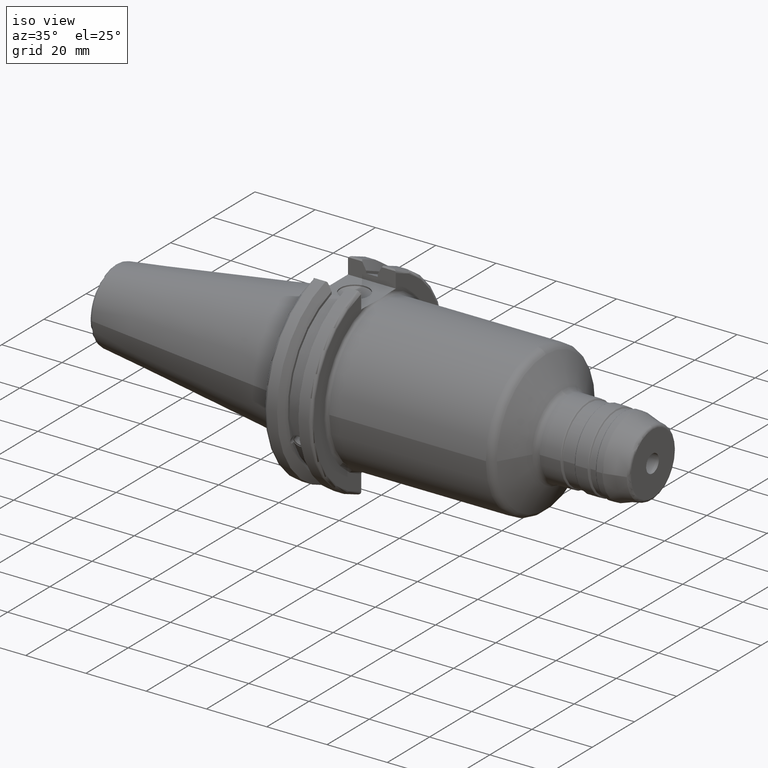
[diagram: clean part render]
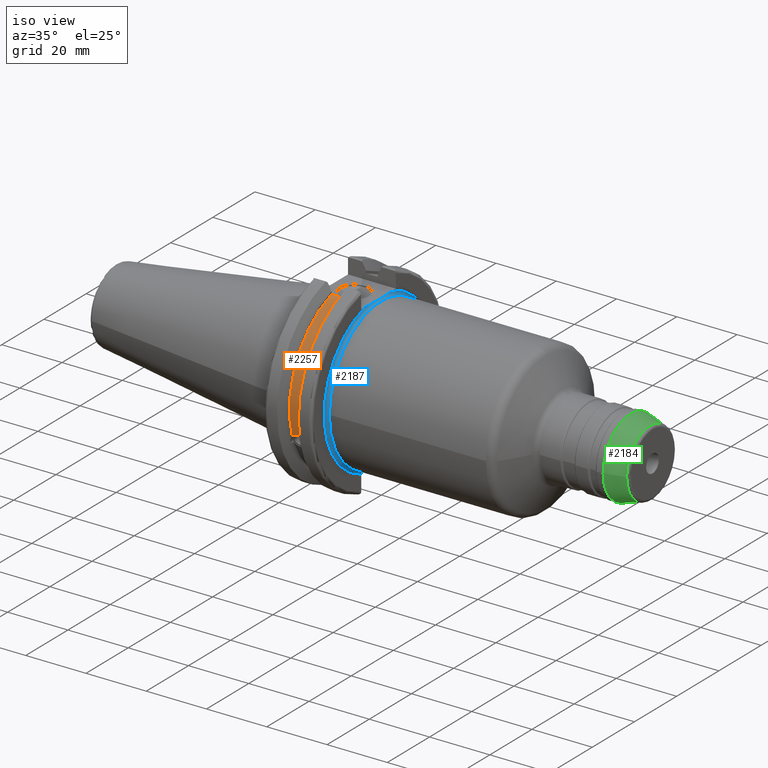
[diagram: same view with three faces highlighted in distinct colors, each labeled with its STEP entity id]
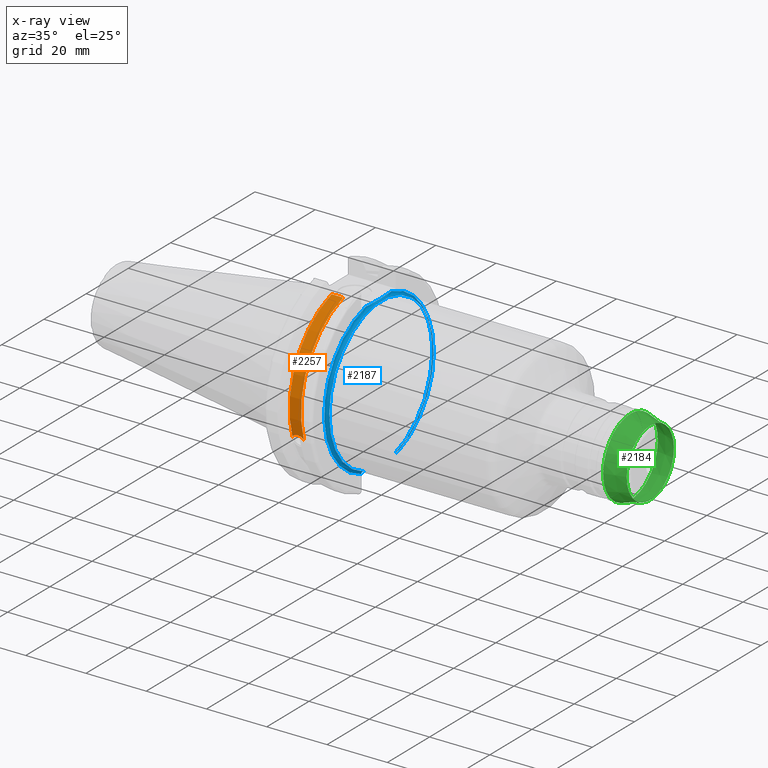
[diagram: x-ray of the same camera — body ghosted, the three highlighted faces saturated]
A machine part, iso view with three faces highlighted in distinct colors.
The next image is the same camera in x-ray (body ghosted, the three faces saturated) — at least one of them is partly hidden behind the body in this view.
Their STEP definitions:

[orange] entity #2257 — the highlighted cylindrical surface (partial cylindrical patch) has radius 28.15 mm, axis along (1, 0, 0).
#155=B_SPLINE_CURVE_WITH_KNOTS('',3,(#3836,#3837,#3838,#3839,#3840,#3841,
#3842,#3843,#3844,#3845,#3846,#3847,#3848,#3849),.UNSPECIFIED.,.F.,.F.,
(4,2,2,2,2,2,4),(0.401639126382403,0.474814416953736,0.553950208498303,
0.63308600004287,0.712221791587437,0.791357583132004,0.864532873703336),
 .UNSPECIFIED.);
#280=FACE_OUTER_BOUND('',#405,.T.);
#405=EDGE_LOOP('',(#2055,#2056,#2057,#2058));
#493=LINE('',#4260,#589);
#589=VECTOR('',#3192,10.);
#789=CIRCLE('',#2586,28.15);
#790=CIRCLE('',#2587,28.15);
#929=VERTEX_POINT('',#3833);
#930=VERTEX_POINT('',#3835);
#1019=VERTEX_POINT('',#4257);
#1020=VERTEX_POINT('',#4259);
#1226=EDGE_CURVE('',#930,#929,#155,.T.);
#1346=EDGE_CURVE('',#1020,#1019,#493,.T.);
#1395=EDGE_CURVE('',#1020,#929,#789,.T.);
#1396=EDGE_CURVE('',#1019,#930,#790,.T.);
#2055=ORIENTED_EDGE('',*,*,#1226,.T.);
#2056=ORIENTED_EDGE('',*,*,#1395,.F.);
#2057=ORIENTED_EDGE('',*,*,#1346,.T.);
#2058=ORIENTED_EDGE('',*,*,#1396,.T.);
#2154=CYLINDRICAL_SURFACE('',#2585,28.15);
#2257=ADVANCED_FACE('',(#280),#2154,.T.);
#2585=AXIS2_PLACEMENT_3D('',#4404,#3293,#3294);
#2586=AXIS2_PLACEMENT_3D('',#4405,#3295,#3296);
#2587=AXIS2_PLACEMENT_3D('',#4406,#3297,#3298);
#3192=DIRECTION('',(-1.,0.,0.));
#3293=DIRECTION('center_axis',(1.,0.,0.));
#3294=DIRECTION('ref_axis',(0.,-0.887654187951484,0.46051063246378));
#3295=DIRECTION('center_axis',(1.,0.,0.));
#3296=DIRECTION('ref_axis',(0.,0.,-1.));
#3297=DIRECTION('center_axis',(1.,0.,0.));
#3298=DIRECTION('ref_axis',(0.,0.,-1.));
#3833=CARTESIAN_POINT('',(13.0491,-26.734714844398,-8.81348524641211));
#3835=CARTESIAN_POINT('',(9.2191,-26.734714844398,-8.81348524641212));
#3836=CARTESIAN_POINT('Ctrl Pts',(9.2191,-26.734714844398,-8.81348524641212));
#3837=CARTESIAN_POINT('Ctrl Pts',(9.32533057097183,-26.8086519721597,-8.58920529678291));
#3838=CARTESIAN_POINT('Ctrl Pts',(9.47682013770509,-26.8729987454904,-8.38416529997369));
#3839=CARTESIAN_POINT('Ctrl Pts',(9.83557062657411,-26.9778908791383,-8.04056861831091));
#3840=CARTESIAN_POINT('Ctrl Pts',(10.0716450112988,-27.0233016799732,-7.88512567185902));
#3841=CARTESIAN_POINT('Ctrl Pts',(10.5890125426388,-27.0826966800569,-7.6786444840004));
#3842=CARTESIAN_POINT('Ctrl Pts',(10.8703140281848,-27.0968804077294,-7.62768458768512));
#3843=CARTESIAN_POINT('Ctrl Pts',(11.3978859718152,-27.0968804077294,-7.62768458768512));
#3844=CARTESIAN_POINT('Ctrl Pts',(11.6791874573612,-27.0826966800569,-7.6786444840004));
#3845=CARTESIAN_POINT('Ctrl Pts',(12.1965549887012,-27.0233016799732,-7.88512567185902));
#3846=CARTESIAN_POINT('Ctrl Pts',(12.4326293734259,-26.9778908791383,-8.04056861831091));
#3847=CARTESIAN_POINT('Ctrl Pts',(12.7913798622949,-26.8729987454904,-8.38416529997369));
#3848=CARTESIAN_POINT('Ctrl Pts',(12.9428694290282,-26.8086519721597,-8.5892052967829));
#3849=CARTESIAN_POINT('Ctrl Pts',(13.0491,-26.734714844398,-8.81348524641211));
#4257=CARTESIAN_POINT('',(9.2191,-8.19,26.932255754021));
#4259=CARTESIAN_POINT('',(13.0491,-8.19,26.932255754021));
#4260=CARTESIAN_POINT('',(11.1341,-8.19,26.932255754021));
#4404=CARTESIAN_POINT('Origin',(11.1341,0.,0.));
#4405=CARTESIAN_POINT('Origin',(13.0491,0.,0.));
#4406=CARTESIAN_POINT('Origin',(9.2191,0.,0.));

[blue] entity #2187 — the highlighted toroidal blend (fillet) surface has major radius 25.75 mm and minor (blend) radius 1 mm.
#75=TOROIDAL_SURFACE('',#2417,25.75,1.);
#150=B_SPLINE_CURVE_WITH_KNOTS('',3,(#3683,#3684,#3685,#3686,#3687,#3688,
#3689,#3690,#3691,#3692),.UNSPECIFIED.,.F.,.F.,(4,2,2,2,4),(1.28229186042809,
1.47392183654147,1.862003561099,2.25008528565654,2.44171526176992),
 .UNSPECIFIED.);
#151=B_SPLINE_CURVE_WITH_KNOTS('',3,(#3696,#3697,#3698,#3699,#3700,#3701,
#3702,#3703,#3704,#3705),.UNSPECIFIED.,.F.,.F.,(4,2,2,2,4),(0.152036209068872,
0.19179652975479,0.230554749961229,0.268011696377573,0.304368806480559),
 .UNSPECIFIED.);
#152=B_SPLINE_CURVE_WITH_KNOTS('',3,(#3711,#3712,#3713,#3714,#3715,#3716,
#3717,#3718,#3719,#3720),.UNSPECIFIED.,.F.,.F.,(4,2,2,2,4),(0.304368806480559,
0.340725916583545,0.378182862999889,0.416941083206328,0.456701403892246),
 .UNSPECIFIED.);
#210=FACE_OUTER_BOUND('',#325,.T.);
#325=EDGE_LOOP('',(#1635,#1636,#1637,#1638,#1639,#1640,#1641));
#699=CIRCLE('',#2418,25.75);
#700=CIRCLE('',#2419,24.75);
#701=CIRCLE('',#2420,24.75);
#702=CIRCLE('',#2421,25.75);
#892=VERTEX_POINT('',#3681);
#893=VERTEX_POINT('',#3682);
#894=VERTEX_POINT('',#3693);
#895=VERTEX_POINT('',#3695);
#896=VERTEX_POINT('',#3706);
#897=VERTEX_POINT('',#3708);
#898=VERTEX_POINT('',#3710);
#1175=EDGE_CURVE('',#892,#893,#150,.F.);
#1176=EDGE_CURVE('',#892,#894,#699,.T.);
#1177=EDGE_CURVE('',#894,#895,#151,.T.);
#1178=EDGE_CURVE('',#895,#896,#700,.T.);
#1179=EDGE_CURVE('',#896,#897,#701,.T.);
#1180=EDGE_CURVE('',#897,#898,#152,.T.);
#1181=EDGE_CURVE('',#898,#893,#702,.T.);
#1635=ORIENTED_EDGE('',*,*,#1175,.F.);
#1636=ORIENTED_EDGE('',*,*,#1176,.T.);
#1637=ORIENTED_EDGE('',*,*,#1177,.T.);
#1638=ORIENTED_EDGE('',*,*,#1178,.T.);
#1639=ORIENTED_EDGE('',*,*,#1179,.T.);
#1640=ORIENTED_EDGE('',*,*,#1180,.T.);
#1641=ORIENTED_EDGE('',*,*,#1181,.T.);
#2187=ADVANCED_FACE('',(#210),#75,.F.);
#2417=AXIS2_PLACEMENT_3D('',#3680,#2881,#2882);
#2418=AXIS2_PLACEMENT_3D('',#3694,#2883,#2884);
#2419=AXIS2_PLACEMENT_3D('',#3707,#2885,#2886);
#2420=AXIS2_PLACEMENT_3D('',#3709,#2887,#2888);
#2421=AXIS2_PLACEMENT_3D('',#3721,#2889,#2890);
#2881=DIRECTION('center_axis',(-1.,0.,0.));
#2882=DIRECTION('ref_axis',(0.,0.,1.));
#2883=DIRECTION('center_axis',(1.,0.,0.));
#2884=DIRECTION('ref_axis',(0.,6.12323399573677E-17,1.));
#2885=DIRECTION('center_axis',(-1.,0.,0.));
#2886=DIRECTION('ref_axis',(0.,6.12323399573676E-17,1.));
#2887=DIRECTION('center_axis',(-1.,0.,0.));
#2888=DIRECTION('ref_axis',(0.,6.12323399573676E-17,1.));
#2889=DIRECTION('center_axis',(1.,0.,0.));
#2890=DIRECTION('ref_axis',(0.,6.12323399573677E-17,1.));
#3680=CARTESIAN_POINT('Origin',(20.05,0.,0.));
#3681=CARTESIAN_POINT('',(19.05,-6.16948133962656,25.));
#3682=CARTESIAN_POINT('',(19.05,6.16948133962656,25.));
#3683=CARTESIAN_POINT('Ctrl Pts',(19.05,6.16948133962656,25.));
#3684=CARTESIAN_POINT('Ctrl Pts',(19.05,5.53071475258196,25.));
#3685=CARTESIAN_POINT('Ctrl Pts',(19.0917093675371,4.76533047486058,25.));
#3686=CARTESIAN_POINT('Ctrl Pts',(19.2334466867335,2.83816328553264,25.));
#3687=CARTESIAN_POINT('Ctrl Pts',(19.3885621722339,1.29360574852511,25.));
#3688=CARTESIAN_POINT('Ctrl Pts',(19.3885621722339,-1.29360574852511,25.));
#3689=CARTESIAN_POINT('Ctrl Pts',(19.2334466867335,-2.83816328553264,25.));
#3690=CARTESIAN_POINT('Ctrl Pts',(19.0917093675371,-4.76533047486058,25.));
#3691=CARTESIAN_POINT('Ctrl Pts',(19.05,-5.53071475258196,25.));
#3692=CARTESIAN_POINT('Ctrl Pts',(19.05,-6.16948133962656,25.));
#3693=CARTESIAN_POINT('',(19.05,-8.19,-24.4128326910254));
#3694=CARTESIAN_POINT('Origin',(19.05,0.,0.));
#3695=CARTESIAN_POINT('',(20.05,-8.19,-23.3556502799644));
#3696=CARTESIAN_POINT('Ctrl Pts',(19.05,-8.19,-24.4128326910254));
#3697=CARTESIAN_POINT('Ctrl Pts',(19.05,-8.19,-24.280298288739));
#3698=CARTESIAN_POINT('Ctrl Pts',(19.079885359023,-8.19,-24.124090110551));
#3699=CARTESIAN_POINT('Ctrl Pts',(19.177275426903,-8.19,-23.8811560320461));
#3700=CARTESIAN_POINT('Ctrl Pts',(19.2609009617474,-8.19,-23.7506111583087));
#3701=CARTESIAN_POINT('Ctrl Pts',(19.4373931081247,-8.19,-23.5678758115065));
#3702=CARTESIAN_POINT('Ctrl Pts',(19.5602603745075,-8.19,-23.4821320058467));
#3703=CARTESIAN_POINT('Ctrl Pts',(19.7864204604307,-8.19,-23.3852265342659));
#3704=CARTESIAN_POINT('Ctrl Pts',(19.92880963299,-8.19,-23.3556502799644));
#3705=CARTESIAN_POINT('Ctrl Pts',(20.05,-8.19,-23.3556502799644));
#3706=CARTESIAN_POINT('',(20.05,-24.75,-3.0310008278897E-15));
#3707=CARTESIAN_POINT('Origin',(20.05,0.,0.));
#3708=CARTESIAN_POINT('',(20.05,8.19,-23.3556502799644));
#3709=CARTESIAN_POINT('Origin',(20.05,0.,0.));
#3710=CARTESIAN_POINT('',(19.05,8.19,-24.4128326910254));
#3711=CARTESIAN_POINT('Ctrl Pts',(20.05,8.19,-23.3556502799644));
#3712=CARTESIAN_POINT('Ctrl Pts',(19.92880963299,8.19,-23.3556502799644));
#3713=CARTESIAN_POINT('Ctrl Pts',(19.7864204604307,8.19,-23.3852265342659));
#3714=CARTESIAN_POINT('Ctrl Pts',(19.5602603745075,8.19,-23.4821320058467));
#3715=CARTESIAN_POINT('Ctrl Pts',(19.4373931081247,8.19,-23.5678758115065));
#3716=CARTESIAN_POINT('Ctrl Pts',(19.2609009617474,8.19,-23.7506111583087));
#3717=CARTESIAN_POINT('Ctrl Pts',(19.177275426903,8.19,-23.8811560320461));
#3718=CARTESIAN_POINT('Ctrl Pts',(19.079885359023,8.19,-24.124090110551));
#3719=CARTESIAN_POINT('Ctrl Pts',(19.05,8.19,-24.280298288739));
#3720=CARTESIAN_POINT('Ctrl Pts',(19.05,8.19,-24.4128326910254));
#3721=CARTESIAN_POINT('Origin',(19.05,0.,0.));

[green] entity #2184 — the highlighted conical surface has half-angle 15 deg.
#110=CONICAL_SURFACE('',#2406,12.,0.261799387799148);
#207=FACE_OUTER_BOUND('',#321,.T.);
#321=EDGE_LOOP('',(#1616,#1617,#1618,#1619,#1620,#1621,#1622,#1623));
#435=LINE('',#3667,#531);
#531=VECTOR('',#2864,12.);
#687=CIRCLE('',#2402,12.9659258262891);
#688=CIRCLE('',#2403,12.9659258262891);
#690=CIRCLE('',#2405,12.9659258262891);
#691=CIRCLE('',#2407,11.1985988383101);
#692=CIRCLE('',#2408,11.1985988383101);
#693=CIRCLE('',#2409,11.1985988383101);
#882=VERTEX_POINT('',#3654);
#883=VERTEX_POINT('',#3655);
#884=VERTEX_POINT('',#3657);
#885=VERTEX_POINT('',#3662);
#886=VERTEX_POINT('',#3663);
#887=VERTEX_POINT('',#3665);
#1162=EDGE_CURVE('',#882,#883,#687,.T.);
#1163=EDGE_CURVE('',#883,#884,#688,.T.);
#1165=EDGE_CURVE('',#884,#882,#690,.T.);
#1166=EDGE_CURVE('',#885,#886,#691,.T.);
#1167=EDGE_CURVE('',#887,#885,#692,.T.);
#1168=EDGE_CURVE('',#887,#883,#435,.T.);
#1169=EDGE_CURVE('',#886,#887,#693,.T.);
#1616=ORIENTED_EDGE('',*,*,#1166,.F.);
#1617=ORIENTED_EDGE('',*,*,#1167,.F.);
#1618=ORIENTED_EDGE('',*,*,#1168,.T.);
#1619=ORIENTED_EDGE('',*,*,#1162,.F.);
#1620=ORIENTED_EDGE('',*,*,#1165,.F.);
#1621=ORIENTED_EDGE('',*,*,#1163,.F.);
#1622=ORIENTED_EDGE('',*,*,#1168,.F.);
#1623=ORIENTED_EDGE('',*,*,#1169,.F.);
#2184=ADVANCED_FACE('',(#207),#110,.T.);
#2402=AXIS2_PLACEMENT_3D('',#3656,#2850,#2851);
#2403=AXIS2_PLACEMENT_3D('',#3658,#2852,#2853);
#2405=AXIS2_PLACEMENT_3D('',#3660,#2856,#2857);
#2406=AXIS2_PLACEMENT_3D('',#3661,#2858,#2859);
#2407=AXIS2_PLACEMENT_3D('',#3664,#2860,#2861);
#2408=AXIS2_PLACEMENT_3D('',#3666,#2862,#2863);
#2409=AXIS2_PLACEMENT_3D('',#3668,#2865,#2866);
#2850=DIRECTION('center_axis',(-1.,0.,0.));
#2851=DIRECTION('ref_axis',(0.,-1.,3.06161699786838E-17));
#2852=DIRECTION('center_axis',(-1.,0.,0.));
#2853=DIRECTION('ref_axis',(0.,-1.,3.06161699786838E-17));
#2856=DIRECTION('center_axis',(-1.,0.,0.));
#2857=DIRECTION('ref_axis',(0.,-1.,3.06161699786838E-17));
#2858=DIRECTION('center_axis',(-1.,0.,0.));
#2859=DIRECTION('ref_axis',(0.,1.,0.));
#2860=DIRECTION('center_axis',(1.,0.,0.));
#2861=DIRECTION('ref_axis',(0.,-1.,3.06161699786838E-17));
#2862=DIRECTION('center_axis',(1.,0.,0.));
#2863=DIRECTION('ref_axis',(0.,-1.,3.06161699786838E-17));
#2864=DIRECTION('',(-0.965925826289069,-0.25881904510252,-3.16961915143175E-17));
#2865=DIRECTION('center_axis',(1.,0.,0.));
#2866=DIRECTION('ref_axis',(0.,-1.,3.06161699786838E-17));
#3654=CARTESIAN_POINT('',(102.663064932377,12.9659258262891,-3.96966989028673E-15));
#3655=CARTESIAN_POINT('',(102.663064932377,-12.9659258262891,-1.58786795611469E-15));
#3656=CARTESIAN_POINT('Origin',(102.663064932377,0.,-1.98483494514336E-15));
#3657=CARTESIAN_POINT('',(102.663064932377,-1.58786795611469E-15,12.9659258262891));
#3658=CARTESIAN_POINT('Origin',(102.663064932377,0.,-1.98483494514336E-15));
#3660=CARTESIAN_POINT('Origin',(102.663064932377,0.,-1.98483494514336E-15));
#3661=CARTESIAN_POINT('Origin',(106.267949192431,0.,0.));
#3662=CARTESIAN_POINT('',(109.258819045103,11.1985988383101,-6.85716411113587E-16));
#3663=CARTESIAN_POINT('',(109.258819045103,-1.37143282222717E-15,11.1985988383101));
#3664=CARTESIAN_POINT('Origin',(109.258819045103,0.,-1.71429102778397E-15));
#3665=CARTESIAN_POINT('',(109.258819045103,-11.1985988383101,-1.37143282222717E-15));
#3666=CARTESIAN_POINT('Origin',(109.258819045103,0.,-1.71429102778397E-15));
#3667=CARTESIAN_POINT('',(106.267949192431,-12.,-1.46957615897682E-15));
#3668=CARTESIAN_POINT('Origin',(109.258819045103,0.,-1.71429102778397E-15));